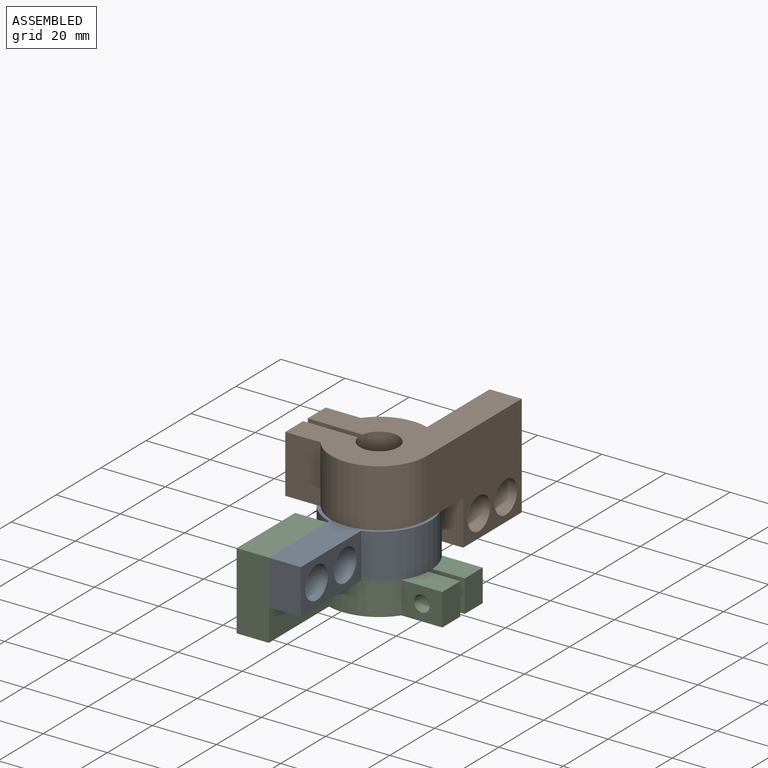
[diagram: assembled view]
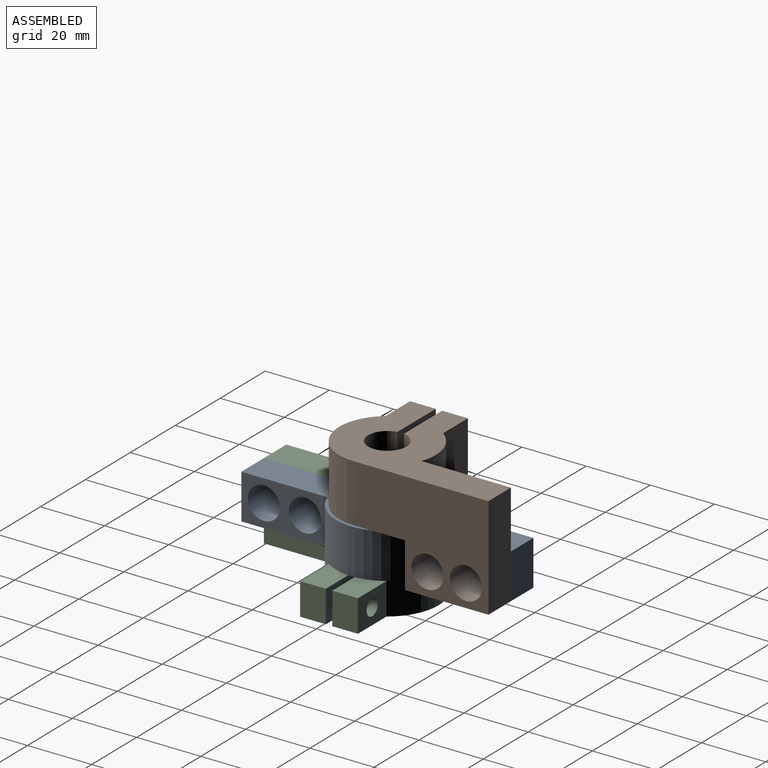
[diagram: assembled view, second angle]
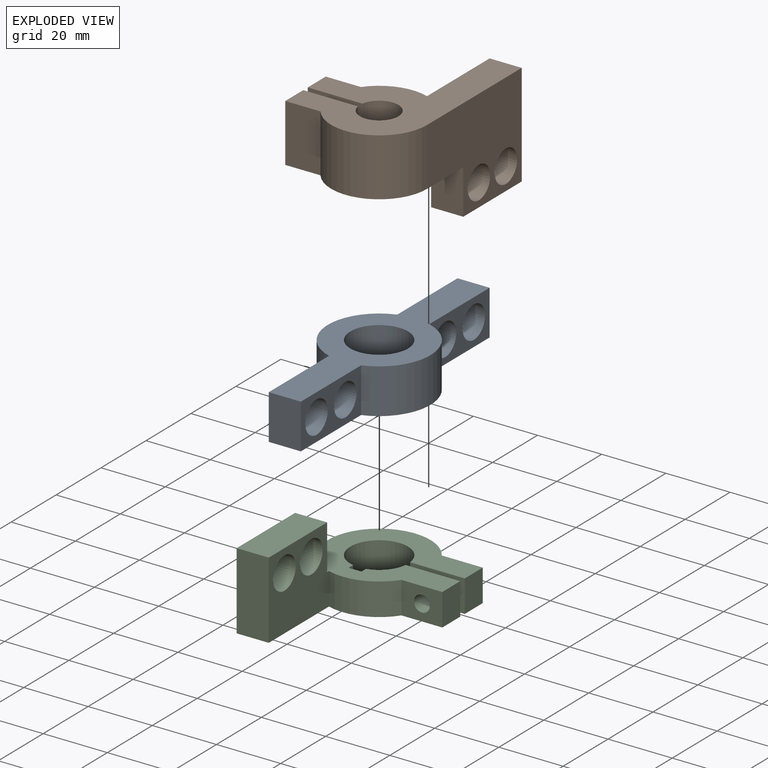
[diagram: exploded view]
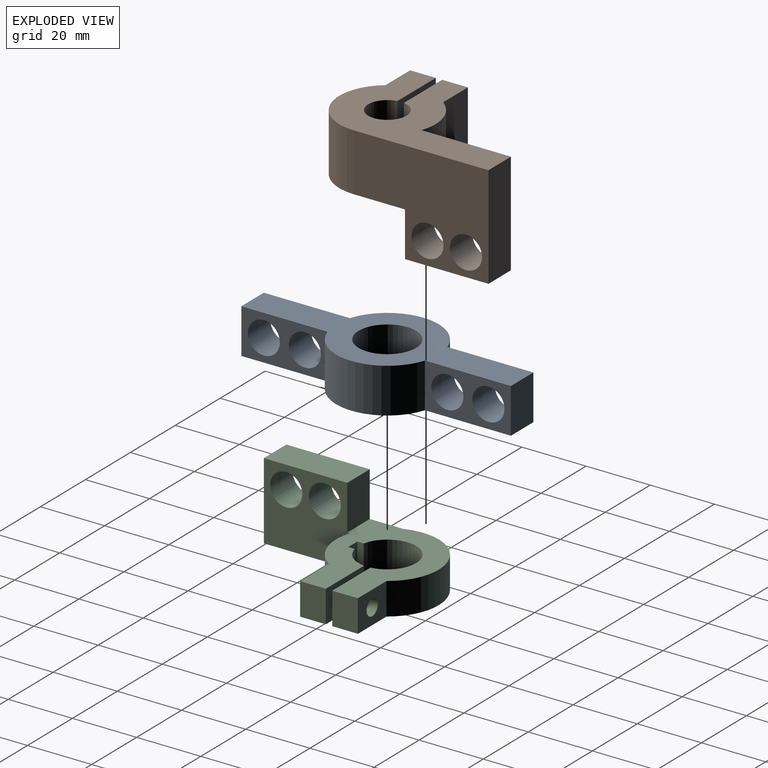
[diagram: exploded view, second angle]
ASSEMBLY  parts=3 mates=2
PART A: 15 faces, bbox 32x84x14 mm
  f0: plane 26.8x14mm, normal (-1,0,0), area 218.1mm2, adj f4,f7,f9,f10,f11,f12
  f1: plane 26.8x14mm, normal (-1,0,0), area 218.1mm2, adj f4,f5,f9,f10,f13,f14
  f2: plane 26.8x14mm, normal (1,0,0), area 218.1mm2, adj f5,f6,f9,f10,f13,f14
  f3: plane 26.8x14mm, normal (1,0,0), area 218.1mm2, adj f6,f7,f9,f10,f11,f12
  f4: cylinder r=16mm len=30.4mm, axis (0,0,-1), area 561.3mm2, adj f0,f1,f9,f10
  f5: plane 14x10mm, normal (0,-1,0), area 140mm2, adj f1,f2,f9,f10
  f6: cylinder r=16mm len=30.4mm, axis (0,0,-1), area 561.3mm2, adj f2,f3,f9,f10
  f7: plane 14x10mm, normal (0,1,0), area 140mm2, adj f0,f3,f9,f10
  f8: cylinder r=9mm len=18mm, axis (0,0,-1), area 791.7mm2, adj f9,f10
  f9: plane 84x32mm, normal (0,0,1), area 1075.1mm2, adj f0,f1,f2,f3,f4,f5,f6,f7
  f10: plane 84x32mm, normal (0,0,-1), area 1075.1mm2, adj f0,f1,f2,f3,f4,f5,f6,f7
  f11: cylinder r=5mm len=10mm, axis (-1,0,0), area 314.2mm2, adj f0,f3
  f12: cylinder r=5mm len=10mm, axis (-1,0,0), area 314.2mm2, adj f0,f3
  f13: cylinder r=5mm len=10mm, axis (-1,0,0), area 314.2mm2, adj f1,f2
  f14: cylinder r=5mm len=10mm, axis (-1,0,0), area 314.2mm2, adj f1,f2
PART B: 18 faces, bbox 38x57x32 mm
  f0: plane 37.97x31mm, normal (0,0,-1), area 777.3mm2, adj f1,f2,f3,f4,f5,f6,f7,f9
  f1: plane 18x17.05mm, normal (0,-1,0), area 306.9mm2, adj f0,f2,f12,f13
  f2: cylinder r=6mm len=18mm, axis (0,0,-1), area 642.4mm2, adj f0,f1,f3,f13
  f3: plane 18x17.05mm, normal (0,1,0), area 306.9mm2, adj f0,f2,f4,f13
  f4: plane 18x8mm, normal (-1,0,0), area 144mm2, adj f0,f3,f5,f13
  f5: plane 18x10.97mm, normal (0,-1,0), area 197.4mm2, adj f0,f4,f6,f13
  f6: cylinder r=15mm len=27mm, axis (0,0,-1), area 674.5mm2, adj f0,f5,f7,f13
  f7: plane 42x32mm, normal (1,0,0), area 962.9mm2, adj f0,f6,f8,f13,f14,f15,f16,f17
  f8: plane 32x10mm, normal (0,1,0), area 320mm2, adj f7,f9,f13,f15
  f9: plane 32x27.86mm, normal (-1,0,0), area 708.4mm2, adj f0,f8,f10,f13,f14,f15,f16,f17
  f10: cylinder r=15mm len=18mm, axis (0,0,-1), area 342.1mm2, adj f0,f9,f11,f13
  f11: plane 18x10.97mm, normal (0,1,0), area 197.4mm2, adj f0,f10,f12,f13
  f12: plane 18x8mm, normal (-1,0,0), area 144mm2, adj f0,f1,f11,f13
  f13: plane 57x37.97mm, normal (0,0,1), area 1037.3mm2, adj f1,f2,f3,f4,f5,f6,f7,f8
  f14: plane 14x10mm, normal (0,-1,0), area 140mm2, adj f0,f7,f9,f15
  f15: plane 26x10mm, normal (0,0,-1), area 260mm2, adj f7,f8,f9,f14
  f16: cylinder r=5mm len=10mm, axis (-1,0,0), area 314.2mm2, adj f7,f9
  f17: cylinder r=5mm len=10mm, axis (-1,0,0), area 314.2mm2, adj f7,f9
PART C: 24 faces, bbox 42x58x24 mm
  f0: cylinder r=9mm len=17.94mm, axis (0,0,-1), area 393.9mm2, adj f1,f2,f6,f21
  f1: plane 58x41.97mm, normal (0,0,1), area 1005.2mm2, adj f0,f3,f4,f5,f6,f7,f8,f9
  f2: plane 41.97x32mm, normal (0,0,-1), area 745.2mm2, adj f0,f3,f4,f5,f6,f7,f8,f9
  f3: plane 26.8x24mm, normal (1,0,0), area 474.9mm2, adj f1,f2,f11,f12,f15,f16,f17,f18
  f4: plane 36.43x24mm, normal (-1,0,0), area 571.2mm2, adj f1,f2,f12,f13,f15,f16,f17,f18
  f5: plane 10x8mm, normal (1,0,0), area 80mm2, adj f1,f2,f6,f14
  f6: plane 17.02x10mm, normal (0,1,0), area 150.6mm2, adj f0,f1,f2,f5,f19
  f7: cylinder r=9mm len=10mm, axis (0,0,-1), area 111.2mm2, adj f1,f2,f8,f22
  f8: plane 17.02x10mm, normal (0,-1,0), area 150.6mm2, adj f1,f2,f7,f9,f20
  f9: plane 10x8mm, normal (1,0,0), area 80mm2, adj f1,f2,f8,f10
  f10: plane 12.74x10mm, normal (0,1,0), area 107.8mm2, adj f1,f2,f9,f11,f20
  f11: cylinder r=16mm len=18.23mm, axis (0,0,-1), area 206.6mm2, adj f1,f2,f3,f10
  f12: plane 24x10mm, normal (0,1,0), area 240mm2, adj f1,f3,f4,f16
  f13: cylinder r=16mm len=29.23mm, axis (0,0,-1), area 463.9mm2, adj f1,f2,f4,f14
  f14: plane 12.74x10mm, normal (0,-1,0), area 107.8mm2, adj f1,f2,f5,f13,f19
  f15: plane 14x10mm, normal (0,-1,0), area 140mm2, adj f2,f3,f4,f16
  f16: plane 26x10mm, normal (0,0,-1), area 260mm2, adj f3,f4,f12,f15
  f17: cylinder r=5mm len=10mm, axis (1,0,0), area 314.2mm2, adj f3,f4
  f18: cylinder r=5mm len=10mm, axis (1,0,0), area 314.2mm2, adj f3,f4
  f19: cylinder r=2.5mm len=8mm, axis (0,-1,0), area 125.7mm2, adj f6,f14
  f20: cylinder r=2.5mm len=8mm, axis (0,-1,0), area 125.7mm2, adj f8,f10
  f21: plane 10x2mm, normal (1,0,0), area 20mm2, adj f0,f1,f2,f23
  f22: plane 10x2mm, normal (-1,0,0), area 20mm2, adj f1,f2,f7,f23
  f23: plane 10x4mm, normal (0,-1,0), area 40mm2, adj f1,f2,f21,f22
PLACE A t=(-15.17,5.51,14.41)mm
PLACE B t=(-15.17,5.51,28.41)mm
PLACE C rot(axis=(1,0,0),180deg) t=(-15.17,5.51,14.41)mm fixed
MATE fastened C.f0 <-> A.f8  axis (0,0,1) through (-15.17,5.51,14.41)mm
MATE fastened A.f8 <-> B.f2  axis (0,0,-1) through (-15.17,5.51,28.41)mm
